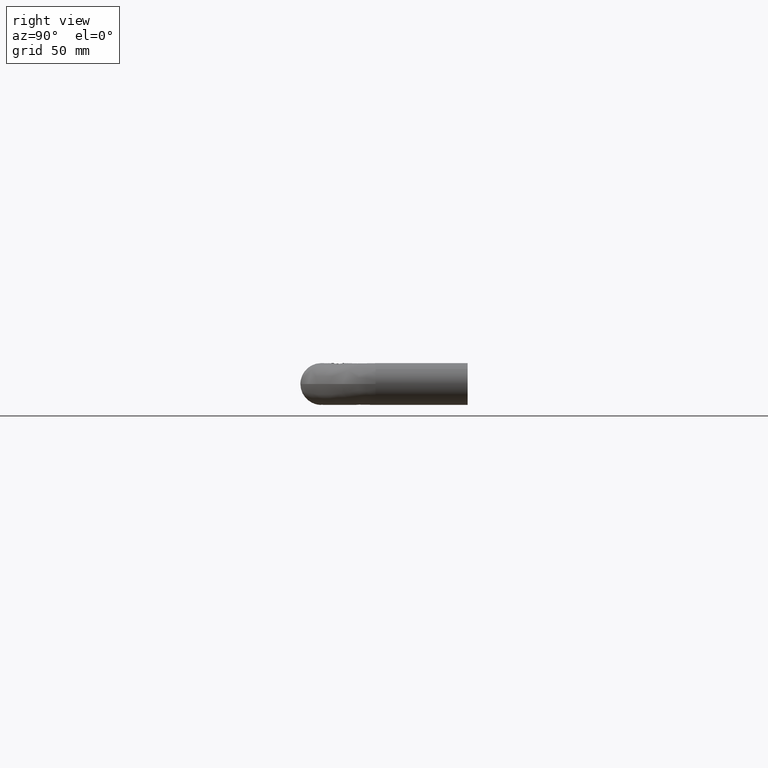
[diagram: clean part render]
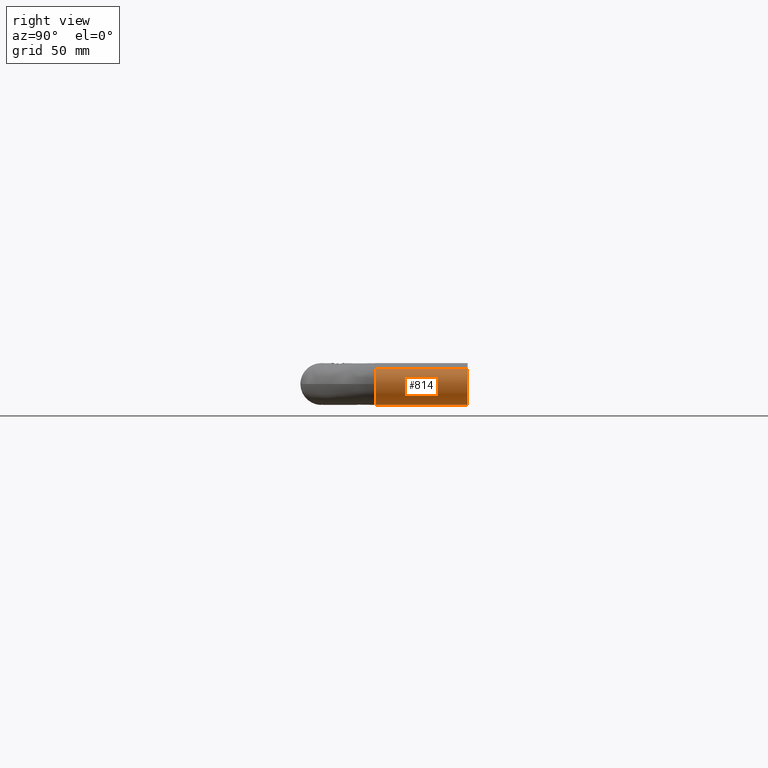
[diagram: same view with one face highlighted and labeled with its STEP entity id]
A machine part, right view. The second image highlights one B-rep face of the part: STEP entity #814.
In plain terms, the highlighted face is a freeform B-spline surface patch.
Its self-contained STEP definition (entity closure, byte-faithful):
#414=CARTESIAN_POINT('',(408.604430780848470,-2.886580E-015,9.067180980745007));
#415=VERTEX_POINT('',#414);
#429=CARTESIAN_POINT('',(400.0,0.0,-12.500000000000000));
#430=VERTEX_POINT('',#429);
#431=CARTESIAN_POINT('',(408.604430780848650,0.0,9.067180980745135));
#432=CARTESIAN_POINT('',(412.500000000000060,0.0,5.370424980244703));
#433=CARTESIAN_POINT('',(412.500000000000110,0.0,0.0));
#434=CARTESIAN_POINT('',(412.500000000000060,0.0,-12.499999999999998));
#435=CARTESIAN_POINT('',(400.0,0.0,-12.500000000000000));
#443=(BOUNDED_CURVE()B_SPLINE_CURVE(2,(#431,#432,#433,#434,#435),.UNSPECIFIED.,.F.,.U.)B_SPLINE_CURVE_WITH_KNOTS((3,2,3),(0.121049503102424,0.250000000000000,0.500000000000000),.UNSPECIFIED.)CURVE()GEOMETRIC_REPRESENTATION_ITEM()RATIONAL_B_SPLINE_CURVE((0.853699663113866,0.848925095584299,1.0,0.707106781186547,1.0))REPRESENTATION_ITEM(''));
#444=EDGE_CURVE('',#415,#430,#443,.T.);
#446=CARTESIAN_POINT('',(391.395569219151530,3.330669E-016,-9.067180980744981));
#447=VERTEX_POINT('',#446);
#448=CARTESIAN_POINT('',(400.0,0.0,-12.500000000000000));
#449=CARTESIAN_POINT('',(395.013006806191750,0.0,-12.499999999999998));
#450=CARTESIAN_POINT('',(391.395569219151530,0.0,-9.067180980745096));
#458=(BOUNDED_CURVE()B_SPLINE_CURVE(2,(#448,#449,#450),.UNSPECIFIED.,.F.,.U.)B_SPLINE_CURVE_WITH_KNOTS((3,3),(0.500000000000000,0.621049503102425),.UNSPECIFIED.)CURVE()GEOMETRIC_REPRESENTATION_ITEM()RATIONAL_B_SPLINE_CURVE((1.0,0.858181685602247,0.853699663113866))REPRESENTATION_ITEM(''));
#459=EDGE_CURVE('',#430,#447,#458,.T.);
#698=CARTESIAN_POINT('',(391.395568913528510,-54.999996283961352,-9.067180690720624));
#699=VERTEX_POINT('',#698);
#730=CARTESIAN_POINT('',(408.604430763588820,-54.999988514614230,9.067180997120886));
#731=VERTEX_POINT('',#730);
#745=CARTESIAN_POINT('',(408.604430763588820,-54.999988514614230,9.067180997120886));
#746=CARTESIAN_POINT('',(408.604430780848470,-2.886580E-015,9.067180980745007));
#747=QUASI_UNIFORM_CURVE('',1,(#745,#746),.UNSPECIFIED.,.F.,.U.);
#748=EDGE_CURVE('',#731,#415,#747,.T.);
#752=CARTESIAN_POINT('',(391.395568913528510,-54.999996283961352,-9.067180690720624));
#753=CARTESIAN_POINT('',(391.395569219151530,3.330669E-016,-9.067180980744981));
#754=QUASI_UNIFORM_CURVE('',1,(#752,#753),.UNSPECIFIED.,.F.,.U.);
#755=EDGE_CURVE('',#699,#447,#754,.T.);
#760=CARTESIAN_POINT('',(408.604432196171900,-56.375000001223910,9.067179637653593));
#761=CARTESIAN_POINT('',(417.671611833825580,-56.375000001223910,0.462747441481671));
#762=CARTESIAN_POINT('',(409.067179637653620,-56.375000001223910,-8.604432196171922));
#763=CARTESIAN_POINT('',(400.462747441481780,-56.375000001223910,-17.671611833825509));
#764=CARTESIAN_POINT('',(391.395567803828100,-56.375000001223910,-9.067179637653593));
#765=CARTESIAN_POINT('',(408.604432196171900,1.409375000030593,9.067179637653593));
#766=CARTESIAN_POINT('',(417.671611833825580,1.409375000030593,0.462747441481671));
#767=CARTESIAN_POINT('',(409.067179637653620,1.409375000030593,-8.604432196171922));
#768=CARTESIAN_POINT('',(400.462747441481780,1.409375000030593,-17.671611833825509));
#769=CARTESIAN_POINT('',(391.395567803828100,1.409375000030593,-9.067179637653593));
#777=(BOUNDED_SURFACE()B_SPLINE_SURFACE(2,1,((#760,#765),(#761,#766),(#762,#767),(#763,#768),(#764,#769)),.UNSPECIFIED.,.F.,.F.,.U.)B_SPLINE_SURFACE_WITH_KNOTS((3,2,3),(2,2),(0.0,20.710678118654759,41.421356237309517),(0.0,57.784375001254503),.UNSPECIFIED.)GEOMETRIC_REPRESENTATION_ITEM()RATIONAL_B_SPLINE_SURFACE(((1.0,1.0),(0.707106781186548,0.707106781186548),(1.0,1.0),(0.707106781186548,0.707106781186548),(1.0,1.0)))REPRESENTATION_ITEM('')SURFACE());
#778=CARTESIAN_POINT('',(412.499999999987320,-54.999976146165750,-1.530758E-015));
#779=VERTEX_POINT('',#778);
#780=CARTESIAN_POINT('',(412.499999999987320,-54.999976146165750,-1.530758E-015));
#781=CARTESIAN_POINT('',(412.499999999987380,-54.999976146149322,-12.499999999999881));
#782=CARTESIAN_POINT('',(399.999999999993970,-54.999988073625268,-12.499999999999600));
#783=CARTESIAN_POINT('',(395.013006561992480,-54.999992832204789,-12.499999999999490));
#784=CARTESIAN_POINT('',(391.395568913528510,-54.999996283961352,-9.067180690720623));
#792=(BOUNDED_CURVE()B_SPLINE_CURVE(2,(#780,#781,#782,#783,#784),.UNSPECIFIED.,.F.,.U.)B_SPLINE_CURVE_WITH_KNOTS((3,2,3),(0.0,0.333333333333333,0.494732677585588),.UNSPECIFIED.)CURVE()GEOMETRIC_REPRESENTATION_ITEM()RATIONAL_B_SPLINE_CURVE((1.0,0.707106781186547,1.0,0.858181679642730,0.853699662737177))REPRESENTATION_ITEM(''));
#793=EDGE_CURVE('',#779,#699,#792,.T.);
#794=ORIENTED_EDGE('',*,*,#793,.T.);
#795=ORIENTED_EDGE('',*,*,#755,.T.);
#796=ORIENTED_EDGE('',*,*,#459,.F.);
#797=ORIENTED_EDGE('',*,*,#444,.F.);
#798=ORIENTED_EDGE('',*,*,#748,.F.);
#799=CARTESIAN_POINT('',(408.604430763588650,-54.999988514614230,9.067180997120886));
#800=CARTESIAN_POINT('',(412.499999999990680,-54.999981270373191,5.370424994334656));
#801=CARTESIAN_POINT('',(412.499999999987320,-54.999976146165750,-1.530758E-015));
#809=(BOUNDED_CURVE()B_SPLINE_CURVE(2,(#799,#800,#801),.UNSPECIFIED.,.F.,.U.)B_SPLINE_CURVE_WITH_KNOTS((3,3),(0.484198011260930,1.0),.UNSPECIFIED.)CURVE()GEOMETRIC_REPRESENTATION_ITEM()RATIONAL_B_SPLINE_CURVE((0.853699663135133,0.848925095247834,1.0))REPRESENTATION_ITEM(''));
#810=EDGE_CURVE('',#731,#779,#809,.T.);
#811=ORIENTED_EDGE('',*,*,#810,.T.);
#812=EDGE_LOOP('',(#794,#795,#796,#797,#798,#811));
#813=FACE_OUTER_BOUND('',#812,.T.);
#814=ADVANCED_FACE('',(#813),#777,.T.);